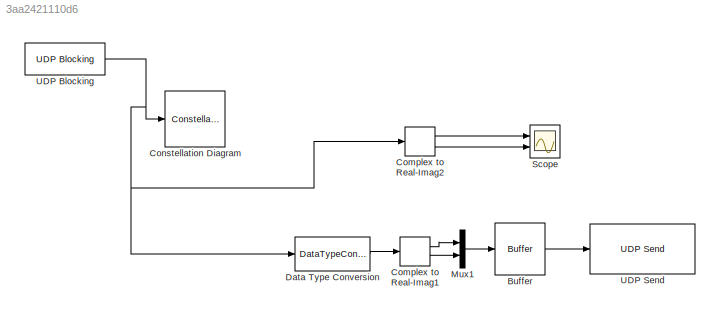
MODEL slx_3aa2421110d6
KIND model
BLOCK [Buffer] Buffer
  Commented = on
  N = 180
  TreatMby1Signals = One channel
BLOCK [ComplexToRealImag] Complex to Real-Imag1
  Commented = on
  Ports = [1, 2]
BLOCK [ComplexToRealImag] Complex to Real-Imag2
  Ports = [1, 2]
BLOCK [ConstellationDiagram] Constellation Diagram
  Ports = [1]
  ScopeSpecificationString = comm.scopes.ConstellationDiagramBlockCfg('CurrentConfiguration', extmgr.ConfigurationSet(extmgr.Configuration('Core','General UI',true),extmgr.Configuration('Core','Source UI',true),extmgr.Configuration('Sources','WiredSimulink',true),extmgr.Configuration('Sources','Simulink',false),extmgr.Configuration('Sources','File',false),extmgr.Configuration('Sources','Workspace',false),extmgr.Configuration(...<+1688ch>
BLOCK [DataTypeConversion] Data Type Conversion
  Commented = on
  OutDataTypeStr = single
  RndMeth = Floor
  SaturateOnIntegerOverflow = off
BLOCK [Mux] Mux1
  Commented = on
  DisplayOption = bar
  Inputs = 2
  Ports = [2, 1]
BLOCK [Scope] Scope
  Floating = off
  LimitDataPoints = off
  NumInputPorts = 2
  Ports = [2]
  ShowLegends = off
  YMax = 1~1
  YMin = -1~-1
BLOCK [Reference] UDP Blocking  REF=siglabs_lib/UDP Blocking
  Ports = [0, 1]
  SourceBlock = siglabs_lib/UDP Blocking
  sample_time = 1/1000
BLOCK [Reference] UDP Send  REF=dspnetwork/UDP Send
  Commented = on
  Ports = [1]
  SourceBlock = dspnetwork/UDP Send
  SourceType = UDP Send
  localPort = -1
  localPortSource = Automatically determine
  localURL = '0.0.0.0'
  remotePort = 1234
  remoteURL = '192.168.1.24'
  sampletime = -1
  separateLengthPort = 0
LINE Buffer:1 -> UDP Send:1
LINE Complex to Real-Imag1:1 -> Mux1:1
LINE Complex to Real-Imag1:2 -> Mux1:2
LINE Complex to Real-Imag2:1 -> Scope:1
LINE Complex to Real-Imag2:2 -> Scope:2
LINE Data Type Conversion:1 -> Complex to Real-Imag1:1
LINE Mux1:1 -> Buffer:1
NET UDP Blocking:1 -> Complex to Real-Imag2:1, Constellation Diagram:1, Data Type Conversion:1
note: NET lines group one-source signal fan-out (src -> all destinations, sorted); 1:1 wires keep LINE
